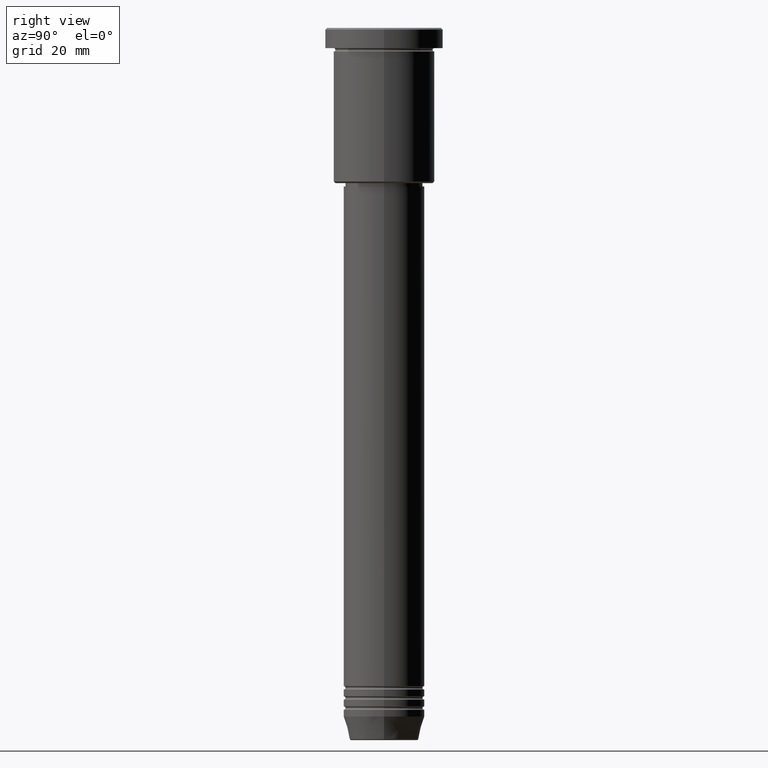
[diagram: clean part render]
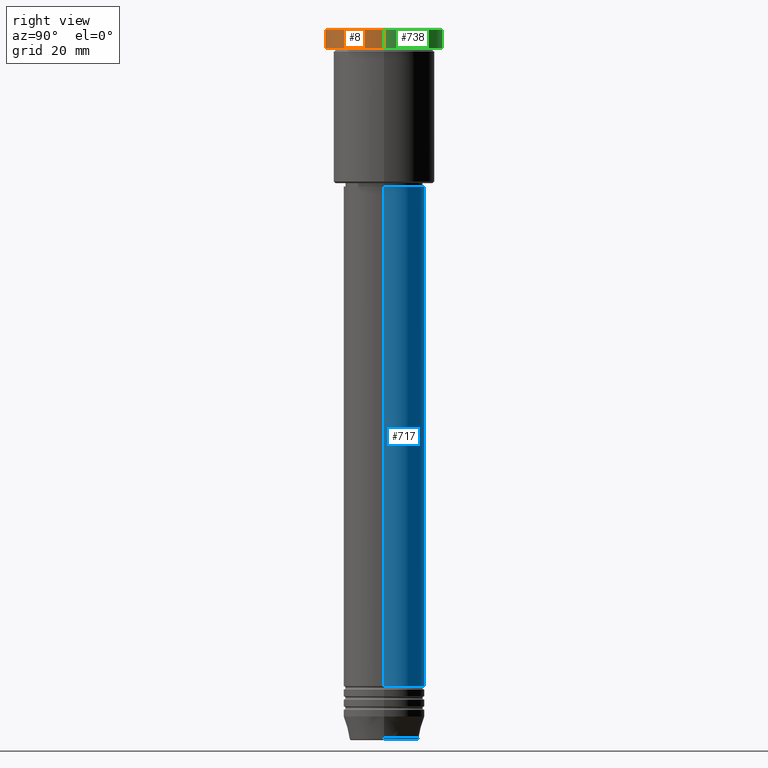
[diagram: same view with three faces highlighted in distinct colors, each labeled with its STEP entity id]
A machine part, right view with three faces highlighted in distinct colors.
Their STEP definitions:

[orange] entity #8 — the highlighted cylindrical surface (partial cylindrical patch) has radius 17.5 mm, axis along (-0, -0, 1).
#8 = ADVANCED_FACE ( 'NONE', ( #856 ), #35, .T. ) ;
#18 = VERTEX_POINT ( 'NONE', #198 ) ;
#31 = AXIS2_PLACEMENT_3D ( 'NONE', #1049, #49, #951 ) ;
#35 = CYLINDRICAL_SURFACE ( 'NONE', #1111, 17.50000000000000000 ) ;
#43 = ORIENTED_EDGE ( 'NONE', *, *, #759, .T. ) ;
#49 = DIRECTION ( 'NONE',  ( -0.000000000000000000, -0.000000000000000000, 1.000000000000000000 ) ) ;
#53 = EDGE_CURVE ( 'NONE', #324, #1032, #111, .T. ) ;
#106 = ORIENTED_EDGE ( 'NONE', *, *, #53, .T. ) ;
#111 = CIRCLE ( 'NONE', #31, 17.50000000000000000 ) ;
#172 = CARTESIAN_POINT ( 'NONE',  ( 17.50000000000000000, 0.000000000000000000, 0.000000000000000000 ) ) ;
#198 = CARTESIAN_POINT ( 'NONE',  ( -17.50000000000000000, 2.143131898507868248E-15, -0.5000000000000559552 ) ) ;
#240 = CARTESIAN_POINT ( 'NONE',  ( -17.50000000000000000, 2.143131898507868248E-15, 0.000000000000000000 ) ) ;
#276 = CARTESIAN_POINT ( 'NONE',  ( 0.000000000000000000, 0.000000000000000000, -0.5000000000000559552 ) ) ;
#324 = VERTEX_POINT ( 'NONE', #816 ) ;
#328 = ORIENTED_EDGE ( 'NONE', *, *, #1097, .F. ) ;
#389 = CARTESIAN_POINT ( 'NONE',  ( 0.000000000000000000, 0.000000000000000000, 0.000000000000000000 ) ) ;
#424 = CARTESIAN_POINT ( 'NONE',  ( 17.50000000000000000, 0.000000000000000000, -5.999999999999995559 ) ) ;
#485 = DIRECTION ( 'NONE',  ( -0.000000000000000000, -0.000000000000000000, 1.000000000000000000 ) ) ;
#548 = DIRECTION ( 'NONE',  ( 0.000000000000000000, 0.000000000000000000, -1.000000000000000000 ) ) ;
#584 = AXIS2_PLACEMENT_3D ( 'NONE', #276, #548, #907 ) ;
#662 = VECTOR ( 'NONE', #917, 1000.000000000000000 ) ;
#679 = EDGE_LOOP ( 'NONE', ( #328, #106, #1178, #43 ) ) ;
#682 = EDGE_CURVE ( 'NONE', #1032, #1144, #737, .T. ) ;
#737 = LINE ( 'NONE', #172, #662 ) ;
#756 = VECTOR ( 'NONE', #1057, 1000.000000000000000 ) ;
#759 = EDGE_CURVE ( 'NONE', #1144, #18, #990, .T. ) ;
#767 = DIRECTION ( 'NONE',  ( 1.000000000000000000, 0.000000000000000000, 0.000000000000000000 ) ) ;
#814 = CARTESIAN_POINT ( 'NONE',  ( 17.50000000000000000, 0.000000000000000000, -0.5000000000000559552 ) ) ;
#816 = CARTESIAN_POINT ( 'NONE',  ( -17.50000000000000000, 2.143131898507868248E-15, -5.999999999999995559 ) ) ;
#856 = FACE_OUTER_BOUND ( 'NONE', #679, .T. ) ;
#907 = DIRECTION ( 'NONE',  ( 1.000000000000000000, 0.000000000000000000, 0.000000000000000000 ) ) ;
#917 = DIRECTION ( 'NONE',  ( -0.000000000000000000, -0.000000000000000000, 1.000000000000000000 ) ) ;
#951 = DIRECTION ( 'NONE',  ( 1.000000000000000000, 0.000000000000000000, 0.000000000000000000 ) ) ;
#990 = CIRCLE ( 'NONE', #584, 17.50000000000000000 ) ;
#1032 = VERTEX_POINT ( 'NONE', #424 ) ;
#1049 = CARTESIAN_POINT ( 'NONE',  ( 0.000000000000000000, 0.000000000000000000, -5.999999999999995559 ) ) ;
#1052 = LINE ( 'NONE', #240, #756 ) ;
#1057 = DIRECTION ( 'NONE',  ( -0.000000000000000000, -0.000000000000000000, 1.000000000000000000 ) ) ;
#1097 = EDGE_CURVE ( 'NONE', #324, #18, #1052, .T. ) ;
#1111 = AXIS2_PLACEMENT_3D ( 'NONE', #389, #485, #767 ) ;
#1144 = VERTEX_POINT ( 'NONE', #814 ) ;
#1178 = ORIENTED_EDGE ( 'NONE', *, *, #682, .T. ) ;

[blue] entity #717 — the highlighted cylindrical surface (partial cylindrical patch) has radius 12 mm, axis along (-0, -0, 1).
#33 = ORIENTED_EDGE ( 'NONE', *, *, #535, .T. ) ;
#45 = VECTOR ( 'NONE', #241, 1000.000000000000000 ) ;
#75 = DIRECTION ( 'NONE',  ( 1.000000000000000000, 0.000000000000000000, 0.000000000000000000 ) ) ;
#76 = CARTESIAN_POINT ( 'NONE',  ( 12.00000000000000000, 0.000000000000000000, 0.000000000000000000 ) ) ;
#110 = EDGE_CURVE ( 'NONE', #435, #284, #384, .T. ) ;
#185 = DIRECTION ( 'NONE',  ( -0.000000000000000000, -0.000000000000000000, 1.000000000000000000 ) ) ;
#214 = VERTEX_POINT ( 'NONE', #978 ) ;
#241 = DIRECTION ( 'NONE',  ( -0.000000000000000000, -0.000000000000000000, 1.000000000000000000 ) ) ;
#254 = DIRECTION ( 'NONE',  ( -0.000000000000000000, -0.000000000000000000, 1.000000000000000000 ) ) ;
#258 = DIRECTION ( 'NONE',  ( -0.000000000000000000, -0.000000000000000000, 1.000000000000000000 ) ) ;
#262 = CARTESIAN_POINT ( 'NONE',  ( 0.000000000000000000, 0.000000000000000000, -47.00000000000002132 ) ) ;
#270 = AXIS2_PLACEMENT_3D ( 'NONE', #262, #258, #363 ) ;
#284 = VERTEX_POINT ( 'NONE', #542 ) ;
#306 = EDGE_CURVE ( 'NONE', #435, #214, #835, .T. ) ;
#340 = CIRCLE ( 'NONE', #270, 12.00000000000000000 ) ;
#362 = ORIENTED_EDGE ( 'NONE', *, *, #306, .F. ) ;
#363 = DIRECTION ( 'NONE',  ( 1.000000000000000000, 0.000000000000000000, 0.000000000000000000 ) ) ;
#384 = CIRCLE ( 'NONE', #1173, 12.00000000000000000 ) ;
#391 = CARTESIAN_POINT ( 'NONE',  ( 12.00000000000000000, 0.000000000000000000, -195.0000000000000000 ) ) ;
#413 = LINE ( 'NONE', #603, #45 ) ;
#435 = VERTEX_POINT ( 'NONE', #391 ) ;
#448 = ORIENTED_EDGE ( 'NONE', *, *, #1114, .F. ) ;
#488 = CARTESIAN_POINT ( 'NONE',  ( -12.00000000000000000, 1.469576158976823947E-15, -47.00000000000002132 ) ) ;
#517 = EDGE_LOOP ( 'NONE', ( #681, #33, #448, #362 ) ) ;
#535 = EDGE_CURVE ( 'NONE', #284, #818, #413, .T. ) ;
#542 = CARTESIAN_POINT ( 'NONE',  ( -12.00000000000000000, 1.469576158976823947E-15, -195.0000000000000000 ) ) ;
#603 = CARTESIAN_POINT ( 'NONE',  ( -12.00000000000000000, 1.469576158976823947E-15, 0.000000000000000000 ) ) ;
#625 = FACE_OUTER_BOUND ( 'NONE', #517, .T. ) ;
#669 = VECTOR ( 'NONE', #185, 1000.000000000000000 ) ;
#681 = ORIENTED_EDGE ( 'NONE', *, *, #110, .T. ) ;
#708 = CARTESIAN_POINT ( 'NONE',  ( 0.000000000000000000, 0.000000000000000000, -195.0000000000000000 ) ) ;
#717 = ADVANCED_FACE ( 'NONE', ( #625 ), #1073, .T. ) ;
#787 = DIRECTION ( 'NONE',  ( -0.000000000000000000, -0.000000000000000000, 1.000000000000000000 ) ) ;
#795 = DIRECTION ( 'NONE',  ( 1.000000000000000000, 0.000000000000000000, 0.000000000000000000 ) ) ;
#818 = VERTEX_POINT ( 'NONE', #488 ) ;
#835 = LINE ( 'NONE', #76, #669 ) ;
#847 = AXIS2_PLACEMENT_3D ( 'NONE', #1062, #254, #75 ) ;
#978 = CARTESIAN_POINT ( 'NONE',  ( 12.00000000000000000, 0.000000000000000000, -47.00000000000002132 ) ) ;
#1062 = CARTESIAN_POINT ( 'NONE',  ( 0.000000000000000000, 0.000000000000000000, 0.000000000000000000 ) ) ;
#1073 = CYLINDRICAL_SURFACE ( 'NONE', #847, 12.00000000000000000 ) ;
#1114 = EDGE_CURVE ( 'NONE', #214, #818, #340, .T. ) ;
#1173 = AXIS2_PLACEMENT_3D ( 'NONE', #708, #787, #795 ) ;

[green] entity #738 — the highlighted cylindrical surface (partial cylindrical patch) has radius 17.5 mm, axis along (-0, -0, 1).
#18 = VERTEX_POINT ( 'NONE', #198 ) ;
#52 = ORIENTED_EDGE ( 'NONE', *, *, #1097, .T. ) ;
#172 = CARTESIAN_POINT ( 'NONE',  ( 17.50000000000000000, 0.000000000000000000, 0.000000000000000000 ) ) ;
#190 = EDGE_CURVE ( 'NONE', #18, #1144, #618, .T. ) ;
#191 = DIRECTION ( 'NONE',  ( -0.000000000000000000, -0.000000000000000000, 1.000000000000000000 ) ) ;
#198 = CARTESIAN_POINT ( 'NONE',  ( -17.50000000000000000, 2.143131898507868248E-15, -0.5000000000000559552 ) ) ;
#240 = CARTESIAN_POINT ( 'NONE',  ( -17.50000000000000000, 2.143131898507868248E-15, 0.000000000000000000 ) ) ;
#324 = VERTEX_POINT ( 'NONE', #816 ) ;
#352 = DIRECTION ( 'NONE',  ( 1.000000000000000000, 0.000000000000000000, 0.000000000000000000 ) ) ;
#361 = EDGE_LOOP ( 'NONE', ( #400, #52, #433, #768 ) ) ;
#400 = ORIENTED_EDGE ( 'NONE', *, *, #704, .T. ) ;
#424 = CARTESIAN_POINT ( 'NONE',  ( 17.50000000000000000, 0.000000000000000000, -5.999999999999995559 ) ) ;
#433 = ORIENTED_EDGE ( 'NONE', *, *, #190, .T. ) ;
#464 = DIRECTION ( 'NONE',  ( 1.000000000000000000, 0.000000000000000000, 0.000000000000000000 ) ) ;
#492 = CIRCLE ( 'NONE', #811, 17.50000000000000000 ) ;
#513 = AXIS2_PLACEMENT_3D ( 'NONE', #815, #651, #352 ) ;
#559 = CARTESIAN_POINT ( 'NONE',  ( 0.000000000000000000, 0.000000000000000000, -0.5000000000000559552 ) ) ;
#618 = CIRCLE ( 'NONE', #1064, 17.50000000000000000 ) ;
#651 = DIRECTION ( 'NONE',  ( -0.000000000000000000, -0.000000000000000000, 1.000000000000000000 ) ) ;
#662 = VECTOR ( 'NONE', #917, 1000.000000000000000 ) ;
#682 = EDGE_CURVE ( 'NONE', #1032, #1144, #737, .T. ) ;
#704 = EDGE_CURVE ( 'NONE', #1032, #324, #492, .T. ) ;
#737 = LINE ( 'NONE', #172, #662 ) ;
#738 = ADVANCED_FACE ( 'NONE', ( #808 ), #1179, .T. ) ;
#756 = VECTOR ( 'NONE', #1057, 1000.000000000000000 ) ;
#768 = ORIENTED_EDGE ( 'NONE', *, *, #682, .F. ) ;
#808 = FACE_OUTER_BOUND ( 'NONE', #361, .T. ) ;
#811 = AXIS2_PLACEMENT_3D ( 'NONE', #890, #191, #974 ) ;
#814 = CARTESIAN_POINT ( 'NONE',  ( 17.50000000000000000, 0.000000000000000000, -0.5000000000000559552 ) ) ;
#815 = CARTESIAN_POINT ( 'NONE',  ( 0.000000000000000000, 0.000000000000000000, 0.000000000000000000 ) ) ;
#816 = CARTESIAN_POINT ( 'NONE',  ( -17.50000000000000000, 2.143131898507868248E-15, -5.999999999999995559 ) ) ;
#890 = CARTESIAN_POINT ( 'NONE',  ( 0.000000000000000000, 0.000000000000000000, -5.999999999999995559 ) ) ;
#917 = DIRECTION ( 'NONE',  ( -0.000000000000000000, -0.000000000000000000, 1.000000000000000000 ) ) ;
#974 = DIRECTION ( 'NONE',  ( 1.000000000000000000, 0.000000000000000000, 0.000000000000000000 ) ) ;
#1032 = VERTEX_POINT ( 'NONE', #424 ) ;
#1052 = LINE ( 'NONE', #240, #756 ) ;
#1057 = DIRECTION ( 'NONE',  ( -0.000000000000000000, -0.000000000000000000, 1.000000000000000000 ) ) ;
#1064 = AXIS2_PLACEMENT_3D ( 'NONE', #559, #1094, #464 ) ;
#1094 = DIRECTION ( 'NONE',  ( 0.000000000000000000, 0.000000000000000000, -1.000000000000000000 ) ) ;
#1097 = EDGE_CURVE ( 'NONE', #324, #18, #1052, .T. ) ;
#1144 = VERTEX_POINT ( 'NONE', #814 ) ;
#1179 = CYLINDRICAL_SURFACE ( 'NONE', #513, 17.50000000000000000 ) ;